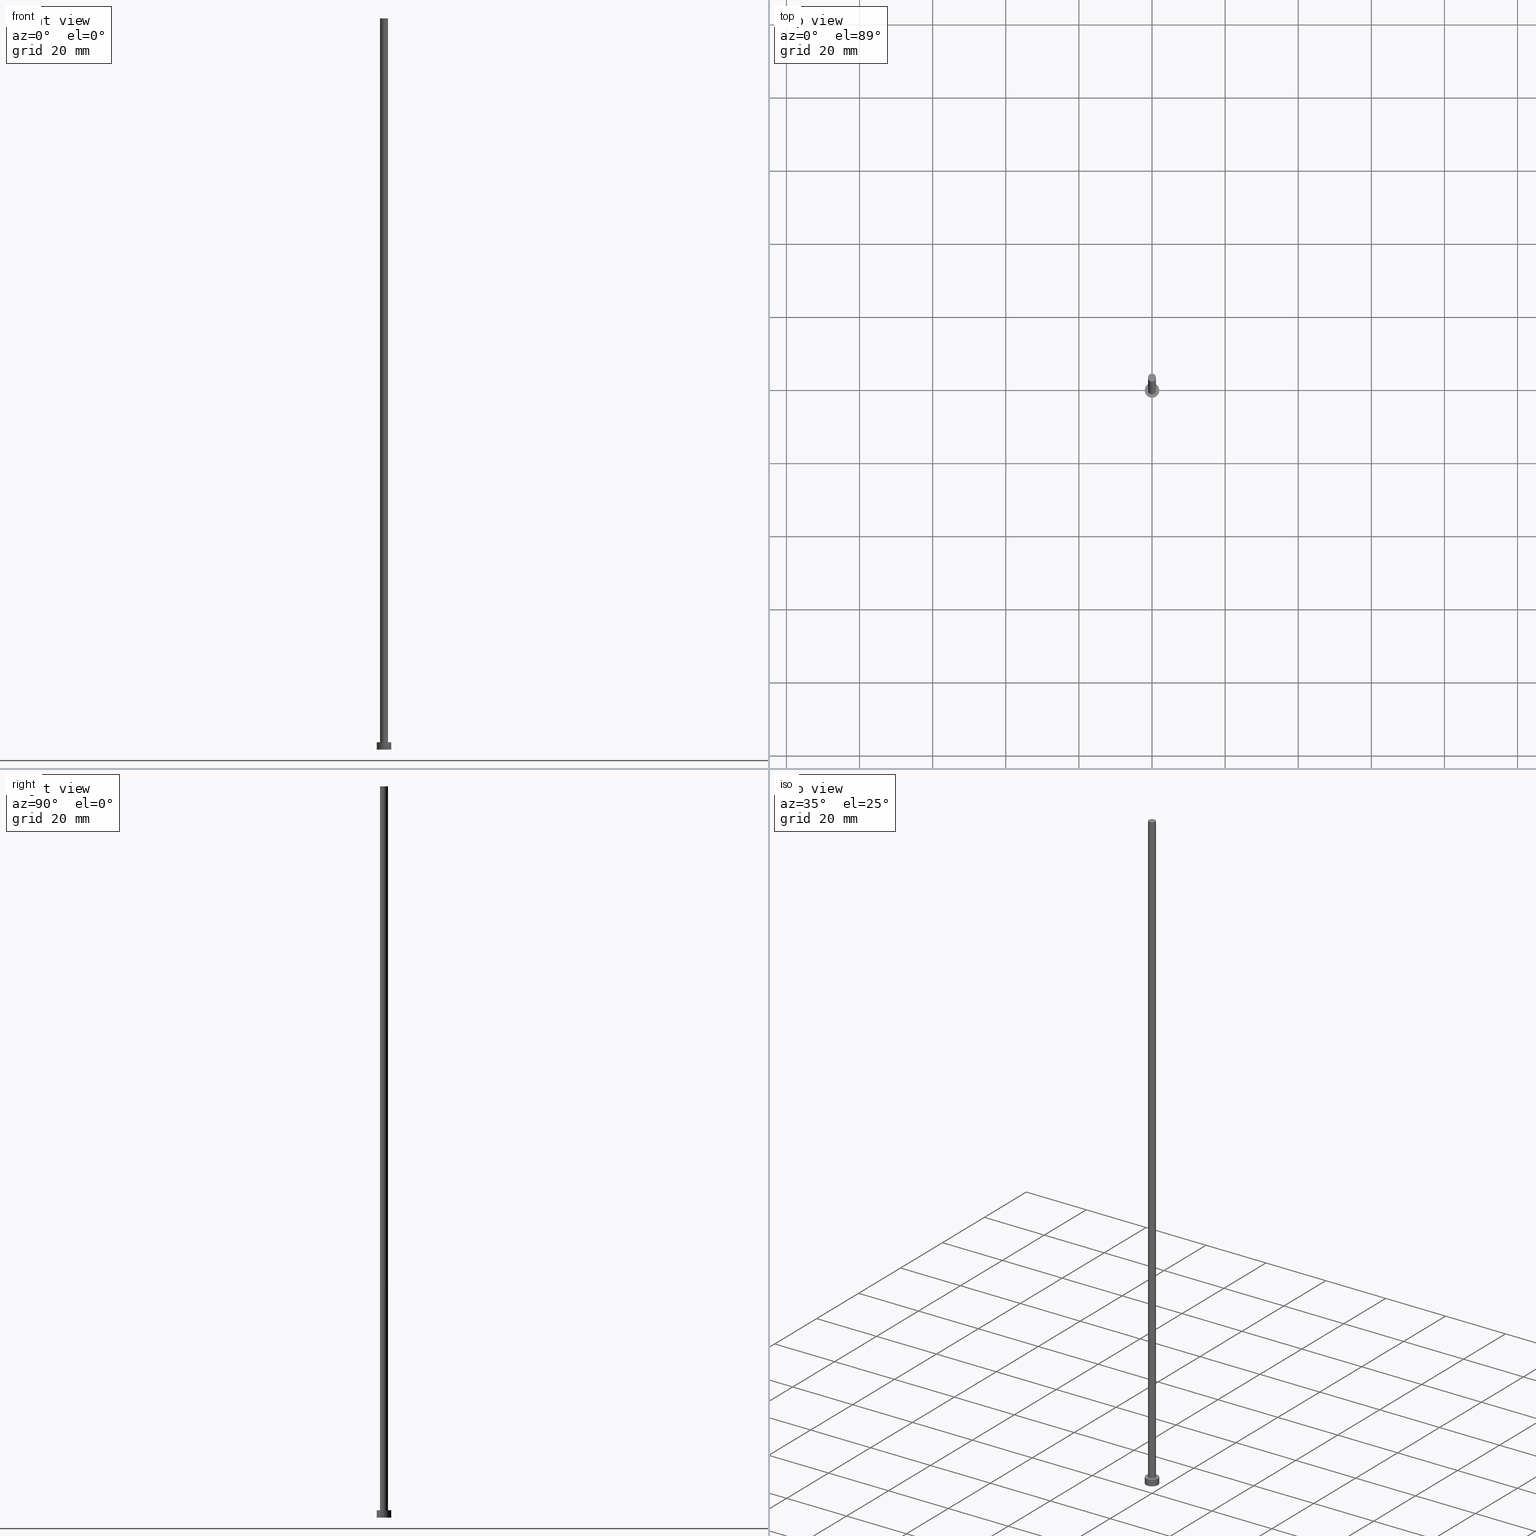
[diagram: canonical four-view strip — front | top / right | iso, engineering-drawing reading convention]
A machine part, canonical four-view strip (front | top / right | iso — engineering-drawing reading convention). The complete STEP part file that produces these views, byte-faithful:
ISO-10303-21;
HEADER;
FILE_DESCRIPTION (( 'STEP AP203' ),
    '1' );
FILE_NAME ('9d11.STEP',
    '2023-02-12T12:22:01',
    ( '' ),
    ( '' ),
    'SwSTEP 2.0',
    'SolidWorks 2019',
    '' );
FILE_SCHEMA (( 'CONFIG_CONTROL_DESIGN' ));
ENDSEC;

DATA;
#1 = DIRECTION ( 'NONE',  ( 1.000000000000000000, 0.000000000000000000, 0.000000000000000000 ) ) ;
#2 = CARTESIAN_POINT ( 'NONE',  ( 2.000000000000000000, 2.449293598294706414E-16, 0.000000000000000000 ) ) ;
#3 = APPROVAL_DATE_TIME ( #10, #62 ) ;
#4 = DIRECTION ( 'NONE',  ( 0.000000000000000000, 0.000000000000000000, 1.000000000000000000 ) ) ;
#5 = LOCAL_TIME ( 13, 22, 1.000000000000000000, #255 ) ;
#6 = ORIENTED_EDGE ( 'NONE', *, *, #129, .T. ) ;
#7 = COORDINATED_UNIVERSAL_TIME_OFFSET ( 1, 0, .AHEAD. ) ;
#8 = CALENDAR_DATE ( 2023, 12, 2 ) ;
#9 = DIRECTION ( 'NONE',  ( 0.000000000000000000, 0.000000000000000000, 1.000000000000000000 ) ) ;
#10 = DATE_AND_TIME ( #20, #193 ) ;
#11 = ORIENTED_EDGE ( 'NONE', *, *, #126, .T. ) ;
#12 = CARTESIAN_POINT ( 'NONE',  ( 0.000000000000000000, 0.000000000000000000, 0.000000000000000000 ) ) ;
#13 = CIRCLE ( 'NONE', #166, 1.100000000000000089 ) ;
#14 = DATE_AND_TIME ( #228, #32 ) ;
#15 = PRODUCT_DEFINITION ( 'NEZN�M�', '', #34, #212 ) ;
#16 = CARTESIAN_POINT ( 'NONE',  ( 0.000000000000000000, 0.000000000000000000, 0.000000000000000000 ) ) ;
#17 = CIRCLE ( 'NONE', #147, 1.100000000000000089 ) ;
#18 = PRODUCT_RELATED_PRODUCT_CATEGORY ( 'detail', '', ( #230 ) ) ;
#19 = CIRCLE ( 'NONE', #196, 2.000000000000000000 ) ;
#20 = CALENDAR_DATE ( 2023, 12, 2 ) ;
#21 = DIRECTION ( 'NONE',  ( 1.000000000000000000, 0.000000000000000000, 0.000000000000000000 ) ) ;
#22 = ORIENTED_EDGE ( 'NONE', *, *, #52, .T. ) ;
#23 = EDGE_LOOP ( 'NONE', ( #102, #187 ) ) ;
#24 = EDGE_CURVE ( 'NONE', #45, #180, #64, .T. ) ;
#25 = DIRECTION ( 'NONE',  ( 1.000000000000000000, 0.000000000000000000, 0.000000000000000000 ) ) ;
#26 = AXIS2_PLACEMENT_3D ( 'NONE', #235, #128, #127 ) ;
#27 = ORIENTED_EDGE ( 'NONE', *, *, #78, .T. ) ;
#28 = COORDINATED_UNIVERSAL_TIME_OFFSET ( 1, 0, .AHEAD. ) ;
#29 = CYLINDRICAL_SURFACE ( 'NONE', #96, 2.000000000000000000 ) ;
#30 = ORIENTED_EDGE ( 'NONE', *, *, #176, .T. ) ;
#31 = ORIENTED_EDGE ( 'NONE', *, *, #146, .T. ) ;
#32 = LOCAL_TIME ( 13, 22, 1.000000000000000000, #72 ) ;
#33 = PERSON_AND_ORGANIZATION ( #178, #40 ) ;
#34 = PRODUCT_DEFINITION_FORMATION_WITH_SPECIFIED_SOURCE ( 'LIBOVOLN�', '', #230, .NOT_KNOWN. ) ;
#35 = CARTESIAN_POINT ( 'NONE',  ( 0.000000000000000000, 0.000000000000000000, 2.000000000000000000 ) ) ;
#36 = ADVANCED_FACE ( 'NONE', ( #163, #115 ), #252, .T. ) ;
#37 =( LENGTH_UNIT ( ) NAMED_UNIT ( * ) SI_UNIT ( .MILLI., .METRE. ) );
#38 = DATE_AND_TIME ( #8, #243 ) ;
#39 = APPROVAL ( #74, 'NEUR�EN�' ) ;
#40 = ORGANIZATION ( 'NEUR�EN�', 'NEUR�EN�', '' ) ;
#41 = ORIENTED_EDGE ( 'NONE', *, *, #24, .T. ) ;
#42 = APPLICATION_PROTOCOL_DEFINITION ( 'international standard', 'config_control_design', 1994, #133 ) ;
#43 = APPROVAL_DATE_TIME ( #38, #39 ) ;
#44 = DIRECTION ( 'NONE',  ( -0.000000000000000000, -0.000000000000000000, -1.000000000000000000 ) ) ;
#45 = VERTEX_POINT ( 'NONE', #2 ) ;
#46 = CARTESIAN_POINT ( 'NONE',  ( 0.000000000000000000, 0.000000000000000000, 200.0000000000000000 ) ) ;
#47 = ORIENTED_EDGE ( 'NONE', *, *, #24, .F. ) ;
#48 = ORIENTED_EDGE ( 'NONE', *, *, #146, .F. ) ;
#49 = CARTESIAN_POINT ( 'NONE',  ( 0.000000000000000000, 0.000000000000000000, 2.000000000000000000 ) ) ;
#50 = VERTEX_POINT ( 'NONE', #79 ) ;
#51 = APPROVAL_PERSON_ORGANIZATION ( #199, #62, #177 ) ;
#52 = EDGE_CURVE ( 'NONE', #144, #88, #80, .T. ) ;
#53 = AXIS2_PLACEMENT_3D ( 'NONE', #119, #4, #200 ) ;
#54 = CARTESIAN_POINT ( 'NONE',  ( -1.100000000000000089, 0.000000000000000000, 200.0000000000000000 ) ) ;
#55 = DIRECTION ( 'NONE',  ( 1.000000000000000000, 0.000000000000000000, 0.000000000000000000 ) ) ;
#56 = ADVANCED_FACE ( 'NONE', ( #160 ), #139, .T. ) ;
#57 = APPLICATION_PROTOCOL_DEFINITION ( 'international standard', 'config_control_design', 1994, #231 ) ;
#58 = APPROVAL_PERSON_ORGANIZATION ( #33, #39, #130 ) ;
#59 = DIRECTION ( 'NONE',  ( -0.000000000000000000, -0.000000000000000000, -1.000000000000000000 ) ) ;
#60 = EDGE_LOOP ( 'NONE', ( #22, #248 ) ) ;
#61 = CARTESIAN_POINT ( 'NONE',  ( -2.000000000000000000, 0.000000000000000000, 2.000000000000000000 ) ) ;
#62 = APPROVAL ( #83, 'NEUR�EN�' ) ;
#63 = DIRECTION ( 'NONE',  ( -1.000000000000000000, 0.000000000000000000, 0.000000000000000000 ) ) ;
#64 = CIRCLE ( 'NONE', #208, 2.000000000000000000 ) ;
#65 = CARTESIAN_POINT ( 'NONE',  ( 0.000000000000000000, 0.000000000000000000, 2.000000000000000000 ) ) ;
#66 = VERTEX_POINT ( 'NONE', #141 ) ;
#67 = APPROVAL_DATE_TIME ( #14, #221 ) ;
#68 = EDGE_CURVE ( 'NONE', #88, #144, #19, .T. ) ;
#69 = VECTOR ( 'NONE', #44, 1000.000000000000000 ) ;
#70 = APPROVAL_PERSON_ORGANIZATION ( #132, #221, #95 ) ;
#71 = FACE_OUTER_BOUND ( 'NONE', #188, .T. ) ;
#72 = COORDINATED_UNIVERSAL_TIME_OFFSET ( 1, 0, .AHEAD. ) ;
#73 = ADVANCED_BREP_SHAPE_REPRESENTATION ( '9d11', ( #191, #142 ), #104 ) ;
#74 = APPROVAL_STATUS ( 'not_yet_approved' ) ;
#75 = EDGE_CURVE ( 'NONE', #88, #45, #121, .T. ) ;
#76 = CALENDAR_DATE ( 2023, 12, 2 ) ;
#77 = PERSON_AND_ORGANIZATION ( #178, #40 ) ;
#78 = EDGE_CURVE ( 'NONE', #250, #122, #13, .T. ) ;
#79 = CARTESIAN_POINT ( 'NONE',  ( -1.100000000000000089, 0.000000000000000000, 2.000000000000000000 ) ) ;
#80 = CIRCLE ( 'NONE', #216, 2.000000000000000000 ) ;
#81 = CARTESIAN_POINT ( 'NONE',  ( -2.000000000000000000, 0.000000000000000000, 2.000000000000000000 ) ) ;
#82 = EDGE_LOOP ( 'NONE', ( #124, #6, #11, #244 ) ) ;
#83 = APPROVAL_STATUS ( 'not_yet_approved' ) ;
#84 = CARTESIAN_POINT ( 'NONE',  ( 0.000000000000000000, 0.000000000000000000, 2.000000000000000000 ) ) ;
#85 = DIRECTION ( 'NONE',  ( 1.000000000000000000, 0.000000000000000000, 0.000000000000000000 ) ) ;
#86 = DIRECTION ( 'NONE',  ( 0.000000000000000000, 0.000000000000000000, 1.000000000000000000 ) ) ;
#87 = AXIS2_PLACEMENT_3D ( 'NONE', #189, #211, #109 ) ;
#88 = VERTEX_POINT ( 'NONE', #174 ) ;
#89 = CC_DESIGN_PERSON_AND_ORGANIZATION_ASSIGNMENT ( #223, #241, ( #230 ) ) ;
#90 = DATE_AND_TIME ( #76, #5 ) ;
#91 = DIRECTION ( 'NONE',  ( 0.000000000000000000, 0.000000000000000000, 1.000000000000000000 ) ) ;
#92 = DIRECTION ( 'NONE',  ( 0.000000000000000000, 0.000000000000000000, 1.000000000000000000 ) ) ;
#93 = CC_DESIGN_APPROVAL ( #221, ( #15 ) ) ;
#94 = LINE ( 'NONE', #213, #214 ) ;
#95 = APPROVAL_ROLE ( '' ) ;
#96 = AXIS2_PLACEMENT_3D ( 'NONE', #65, #247, #143 ) ;
#97 = ORIENTED_EDGE ( 'NONE', *, *, #229, .T. ) ;
#98 = DATE_TIME_ROLE ( 'classification_date' ) ;
#99 = DIRECTION ( 'NONE',  ( -1.000000000000000000, 0.000000000000000000, 0.000000000000000000 ) ) ;
#100 = EDGE_LOOP ( 'NONE', ( #27, #207 ) ) ;
#101 = CC_DESIGN_APPROVAL ( #62, ( #171 ) ) ;
#102 = ORIENTED_EDGE ( 'NONE', *, *, #172, .F. ) ;
#103 = ORIENTED_EDGE ( 'NONE', *, *, #176, .F. ) ;
#104 =( GEOMETRIC_REPRESENTATION_CONTEXT ( 3 ) GLOBAL_UNCERTAINTY_ASSIGNED_CONTEXT ( ( #195 ) ) GLOBAL_UNIT_ASSIGNED_CONTEXT ( ( #37, #111, #238 ) ) REPRESENTATION_CONTEXT ( 'NONE', 'WORKASPACE' ) );
#105 = ADVANCED_FACE ( 'NONE', ( #117 ), #161, .T. ) ;
#106 = CC_DESIGN_DATE_AND_TIME_ASSIGNMENT ( #90, #233, ( #15 ) ) ;
#107 = CIRCLE ( 'NONE', #226, 1.100000000000000089 ) ;
#108 = CC_DESIGN_PERSON_AND_ORGANIZATION_ASSIGNMENT ( #240, #215, ( #34 ) ) ;
#109 = DIRECTION ( 'NONE',  ( 1.000000000000000000, 0.000000000000000000, 0.000000000000000000 ) ) ;
#110 = CARTESIAN_POINT ( 'NONE',  ( 0.000000000000000000, 0.000000000000000000, 200.0000000000000000 ) ) ;
#111 =( NAMED_UNIT ( * ) PLANE_ANGLE_UNIT ( ) SI_UNIT ( $, .RADIAN. ) );
#112 = APPROVAL_STATUS ( 'not_yet_approved' ) ;
#113 = AXIS2_PLACEMENT_3D ( 'NONE', #110, #194, #169 ) ;
#114 = PERSON_AND_ORGANIZATION_ROLE ( 'classification_officer' ) ;
#115 = FACE_OUTER_BOUND ( 'NONE', #60, .T. ) ;
#116 = SHAPE_DEFINITION_REPRESENTATION ( #234, #73 ) ;
#117 = FACE_OUTER_BOUND ( 'NONE', #222, .T. ) ;
#118 = ORIENTED_EDGE ( 'NONE', *, *, #68, .F. ) ;
#119 = CARTESIAN_POINT ( 'NONE',  ( 0.000000000000000000, 0.000000000000000000, 200.0000000000000000 ) ) ;
#120 = CARTESIAN_POINT ( 'NONE',  ( 0.000000000000000000, 0.000000000000000000, 200.0000000000000000 ) ) ;
#121 = LINE ( 'NONE', #220, #69 ) ;
#122 = VERTEX_POINT ( 'NONE', #183 ) ;
#123 = FACE_OUTER_BOUND ( 'NONE', #153, .T. ) ;
#124 = ORIENTED_EDGE ( 'NONE', *, *, #190, .F. ) ;
#125 = CLOSED_SHELL ( 'NONE', ( #56, #151, #105, #36, #155, #237, #137 ) ) ;
#126 = EDGE_CURVE ( 'NONE', #66, #50, #107, .T. ) ;
#127 = DIRECTION ( 'NONE',  ( 1.000000000000000000, 0.000000000000000000, -0.000000000000000000 ) ) ;
#128 = DIRECTION ( 'NONE',  ( 0.000000000000000000, 0.000000000000000000, 1.000000000000000000 ) ) ;
#129 = EDGE_CURVE ( 'NONE', #122, #66, #179, .T. ) ;
#130 = APPROVAL_ROLE ( '' ) ;
#131 = CC_DESIGN_SECURITY_CLASSIFICATION ( #171, ( #34 ) ) ;
#132 = PERSON_AND_ORGANIZATION ( #178, #40 ) ;
#133 = APPLICATION_CONTEXT ( 'configuration controlled 3d designs of mechanical parts and assemblies' ) ;
#134 = ORIENTED_EDGE ( 'NONE', *, *, #75, .F. ) ;
#135 = FACE_OUTER_BOUND ( 'NONE', #100, .T. ) ;
#136 = ORIENTED_EDGE ( 'NONE', *, *, #52, .F. ) ;
#137 = ADVANCED_FACE ( 'NONE', ( #135 ), #249, .T. ) ;
#138 = DIRECTION ( 'NONE',  ( -0.000000000000000000, -0.000000000000000000, -1.000000000000000000 ) ) ;
#139 = CYLINDRICAL_SURFACE ( 'NONE', #254, 1.100000000000000089 ) ;
#140 = PERSON_AND_ORGANIZATION ( #178, #40 ) ;
#141 = CARTESIAN_POINT ( 'NONE',  ( 1.100000000000000089, 1.347111479062088503E-16, 2.000000000000000000 ) ) ;
#142 = AXIS2_PLACEMENT_3D ( 'NONE', #16, #92, #173 ) ;
#143 = DIRECTION ( 'NONE',  ( -1.000000000000000000, 0.000000000000000000, 0.000000000000000000 ) ) ;
#144 = VERTEX_POINT ( 'NONE', #81 ) ;
#145 = PERSON_AND_ORGANIZATION ( #178, #40 ) ;
#146 = EDGE_CURVE ( 'NONE', #144, #180, #245, .T. ) ;
#147 = AXIS2_PLACEMENT_3D ( 'NONE', #150, #236, #55 ) ;
#148 = COORDINATED_UNIVERSAL_TIME_OFFSET ( 1, 0, .AHEAD. ) ;
#149 = CYLINDRICAL_SURFACE ( 'NONE', #113, 1.100000000000000089 ) ;
#150 = CARTESIAN_POINT ( 'NONE',  ( 0.000000000000000000, 0.000000000000000000, 200.0000000000000000 ) ) ;
#151 = ADVANCED_FACE ( 'NONE', ( #159 ), #29, .T. ) ;
#152 = CC_DESIGN_PERSON_AND_ORGANIZATION_ASSIGNMENT ( #77, #182, ( #34 ) ) ;
#153 = EDGE_LOOP ( 'NONE', ( #103, #47 ) ) ;
#154 = LOCAL_TIME ( 13, 22, 1.000000000000000000, #7 ) ;
#155 = ADVANCED_FACE ( 'NONE', ( #123 ), #206, .F. ) ;
#156 = DIRECTION ( 'NONE',  ( 0.000000000000000000, 0.000000000000000000, 1.000000000000000000 ) ) ;
#157 = ORIENTED_EDGE ( 'NONE', *, *, #75, .T. ) ;
#158 = MECHANICAL_CONTEXT ( 'NONE', #133, 'mechanical' ) ;
#159 = FACE_OUTER_BOUND ( 'NONE', #227, .T. ) ;
#160 = FACE_OUTER_BOUND ( 'NONE', #82, .T. ) ;
#161 = CYLINDRICAL_SURFACE ( 'NONE', #232, 2.000000000000000000 ) ;
#162 = CC_DESIGN_DATE_AND_TIME_ASSIGNMENT ( #197, #98, ( #171 ) ) ;
#163 = FACE_BOUND ( 'NONE', #23, .T. ) ;
#164 = VECTOR ( 'NONE', #59, 1000.000000000000000 ) ;
#165 = DIRECTION ( 'NONE',  ( 1.000000000000000000, 0.000000000000000000, 0.000000000000000000 ) ) ;
#166 = AXIS2_PLACEMENT_3D ( 'NONE', #46, #9, #21 ) ;
#167 = CIRCLE ( 'NONE', #87, 2.000000000000000000 ) ;
#168 = CC_DESIGN_PERSON_AND_ORGANIZATION_ASSIGNMENT ( #145, #170, ( #15 ) ) ;
#169 = DIRECTION ( 'NONE',  ( -1.000000000000000000, 0.000000000000000000, 0.000000000000000000 ) ) ;
#170 = PERSON_AND_ORGANIZATION_ROLE ( 'creator' ) ;
#171 = SECURITY_CLASSIFICATION ( '', '', #218 ) ;
#172 = EDGE_CURVE ( 'NONE', #50, #66, #251, .T. ) ;
#173 = DIRECTION ( 'NONE',  ( 1.000000000000000000, 0.000000000000000000, 0.000000000000000000 ) ) ;
#174 = CARTESIAN_POINT ( 'NONE',  ( 2.000000000000000000, 2.449293598294706414E-16, 2.000000000000000000 ) ) ;
#175 = DIRECTION ( 'NONE',  ( 1.000000000000000000, 0.000000000000000000, -0.000000000000000000 ) ) ;
#176 = EDGE_CURVE ( 'NONE', #180, #45, #167, .T. ) ;
#177 = APPROVAL_ROLE ( '' ) ;
#178 = PERSON ( 'NEUR�EN�', 'NEUR�EN�', 'NEUR�EN�', ('NEUR�EN�'), ('NEUR�EN�'), ('NEUR�EN�') ) ;
#179 = LINE ( 'NONE', #204, #164 ) ;
#180 = VERTEX_POINT ( 'NONE', #192 ) ;
#181 = AXIS2_PLACEMENT_3D ( 'NONE', #35, #91, #210 ) ;
#182 = PERSON_AND_ORGANIZATION_ROLE ( 'creator' ) ;
#183 = CARTESIAN_POINT ( 'NONE',  ( 1.100000000000000089, 1.347111479062088503E-16, 200.0000000000000000 ) ) ;
#184 = DIRECTION ( 'NONE',  ( 0.000000000000000000, 0.000000000000000000, 1.000000000000000000 ) ) ;
#185 = CALENDAR_DATE ( 2023, 12, 2 ) ;
#186 = CC_DESIGN_PERSON_AND_ORGANIZATION_ASSIGNMENT ( #140, #114, ( #171 ) ) ;
#187 = ORIENTED_EDGE ( 'NONE', *, *, #126, .F. ) ;
#188 = EDGE_LOOP ( 'NONE', ( #225, #217, #97, #205 ) ) ;
#189 = CARTESIAN_POINT ( 'NONE',  ( 0.000000000000000000, 0.000000000000000000, 0.000000000000000000 ) ) ;
#190 = EDGE_CURVE ( 'NONE', #122, #250, #17, .T. ) ;
#191 = MANIFOLD_SOLID_BREP ( 'P�idat vysunut�m3', #125 ) ;
#192 = CARTESIAN_POINT ( 'NONE',  ( -2.000000000000000000, 0.000000000000000000, 0.000000000000000000 ) ) ;
#193 = LOCAL_TIME ( 13, 22, 1.000000000000000000, #28 ) ;
#194 = DIRECTION ( 'NONE',  ( -0.000000000000000000, -0.000000000000000000, -1.000000000000000000 ) ) ;
#195 = UNCERTAINTY_MEASURE_WITH_UNIT (LENGTH_MEASURE( 1.000000000000000082E-05 ), #37, 'distance_accuracy_value', 'NONE');
#196 = AXIS2_PLACEMENT_3D ( 'NONE', #224, #156, #1 ) ;
#197 = DATE_AND_TIME ( #185, #154 ) ;
#198 = CARTESIAN_POINT ( 'NONE',  ( 0.000000000000000000, 0.000000000000000000, 2.000000000000000000 ) ) ;
#199 = PERSON_AND_ORGANIZATION ( #178, #40 ) ;
#200 = DIRECTION ( 'NONE',  ( 1.000000000000000000, 0.000000000000000000, -0.000000000000000000 ) ) ;
#201 = DIRECTION ( 'NONE',  ( 0.000000000000000000, 0.000000000000000000, 1.000000000000000000 ) ) ;
#202 = DIRECTION ( 'NONE',  ( -0.000000000000000000, -0.000000000000000000, -1.000000000000000000 ) ) ;
#203 = VECTOR ( 'NONE', #138, 1000.000000000000000 ) ;
#204 = CARTESIAN_POINT ( 'NONE',  ( 1.100000000000000089, 1.347111479062088503E-16, 200.0000000000000000 ) ) ;
#205 = ORIENTED_EDGE ( 'NONE', *, *, #172, .T. ) ;
#206 = PLANE ( 'NONE',  #26 ) ;
#207 = ORIENTED_EDGE ( 'NONE', *, *, #190, .T. ) ;
#208 = AXIS2_PLACEMENT_3D ( 'NONE', #12, #184, #165 ) ;
#209 = AXIS2_PLACEMENT_3D ( 'NONE', #198, #219, #175 ) ;
#210 = DIRECTION ( 'NONE',  ( 1.000000000000000000, 0.000000000000000000, 0.000000000000000000 ) ) ;
#211 = DIRECTION ( 'NONE',  ( 0.000000000000000000, 0.000000000000000000, 1.000000000000000000 ) ) ;
#212 = DESIGN_CONTEXT ( 'detailed design', #231, 'design' ) ;
#213 = CARTESIAN_POINT ( 'NONE',  ( -1.100000000000000089, 0.000000000000000000, 200.0000000000000000 ) ) ;
#214 = VECTOR ( 'NONE', #253, 1000.000000000000000 ) ;
#215 = PERSON_AND_ORGANIZATION_ROLE ( 'design_supplier' ) ;
#216 = AXIS2_PLACEMENT_3D ( 'NONE', #246, #201, #85 ) ;
#217 = ORIENTED_EDGE ( 'NONE', *, *, #78, .F. ) ;
#218 = SECURITY_CLASSIFICATION_LEVEL ( 'unclassified' ) ;
#219 = DIRECTION ( 'NONE',  ( 0.000000000000000000, 0.000000000000000000, 1.000000000000000000 ) ) ;
#220 = CARTESIAN_POINT ( 'NONE',  ( 2.000000000000000000, 2.449293598294706414E-16, 2.000000000000000000 ) ) ;
#221 = APPROVAL ( #112, 'NEUR�EN�' ) ;
#222 = EDGE_LOOP ( 'NONE', ( #134, #136, #31, #30 ) ) ;
#223 = PERSON_AND_ORGANIZATION ( #178, #40 ) ;
#224 = CARTESIAN_POINT ( 'NONE',  ( 0.000000000000000000, 0.000000000000000000, 2.000000000000000000 ) ) ;
#225 = ORIENTED_EDGE ( 'NONE', *, *, #129, .F. ) ;
#226 = AXIS2_PLACEMENT_3D ( 'NONE', #49, #86, #25 ) ;
#227 = EDGE_LOOP ( 'NONE', ( #118, #157, #41, #48 ) ) ;
#228 = CALENDAR_DATE ( 2023, 12, 2 ) ;
#229 = EDGE_CURVE ( 'NONE', #250, #50, #94, .T. ) ;
#230 = PRODUCT ( '9d11', '9d11', '', ( #158 ) ) ;
#231 = APPLICATION_CONTEXT ( 'configuration controlled 3d designs of mechanical parts and assemblies' ) ;
#232 = AXIS2_PLACEMENT_3D ( 'NONE', #84, #242, #99 ) ;
#233 = DATE_TIME_ROLE ( 'creation_date' ) ;
#234 = PRODUCT_DEFINITION_SHAPE ( 'NONE', 'NONE',  #15 ) ;
#235 = CARTESIAN_POINT ( 'NONE',  ( 0.000000000000000000, 0.000000000000000000, 0.000000000000000000 ) ) ;
#236 = DIRECTION ( 'NONE',  ( 0.000000000000000000, 0.000000000000000000, 1.000000000000000000 ) ) ;
#237 = ADVANCED_FACE ( 'NONE', ( #71 ), #149, .T. ) ;
#238 =( NAMED_UNIT ( * ) SI_UNIT ( $, .STERADIAN. ) SOLID_ANGLE_UNIT ( ) );
#239 = CC_DESIGN_APPROVAL ( #39, ( #34 ) ) ;
#240 = PERSON_AND_ORGANIZATION ( #178, #40 ) ;
#241 = PERSON_AND_ORGANIZATION_ROLE ( 'design_owner' ) ;
#242 = DIRECTION ( 'NONE',  ( -0.000000000000000000, -0.000000000000000000, -1.000000000000000000 ) ) ;
#243 = LOCAL_TIME ( 13, 22, 1.000000000000000000, #148 ) ;
#244 = ORIENTED_EDGE ( 'NONE', *, *, #229, .F. ) ;
#245 = LINE ( 'NONE', #61, #203 ) ;
#246 = CARTESIAN_POINT ( 'NONE',  ( 0.000000000000000000, 0.000000000000000000, 2.000000000000000000 ) ) ;
#247 = DIRECTION ( 'NONE',  ( -0.000000000000000000, -0.000000000000000000, -1.000000000000000000 ) ) ;
#248 = ORIENTED_EDGE ( 'NONE', *, *, #68, .T. ) ;
#249 = PLANE ( 'NONE',  #53 ) ;
#250 = VERTEX_POINT ( 'NONE', #54 ) ;
#251 = CIRCLE ( 'NONE', #181, 1.100000000000000089 ) ;
#252 = PLANE ( 'NONE',  #209 ) ;
#253 = DIRECTION ( 'NONE',  ( -0.000000000000000000, -0.000000000000000000, -1.000000000000000000 ) ) ;
#254 = AXIS2_PLACEMENT_3D ( 'NONE', #120, #202, #63 ) ;
#255 = COORDINATED_UNIVERSAL_TIME_OFFSET ( 1, 0, .AHEAD. ) ;
ENDSEC;
END-ISO-10303-21;
